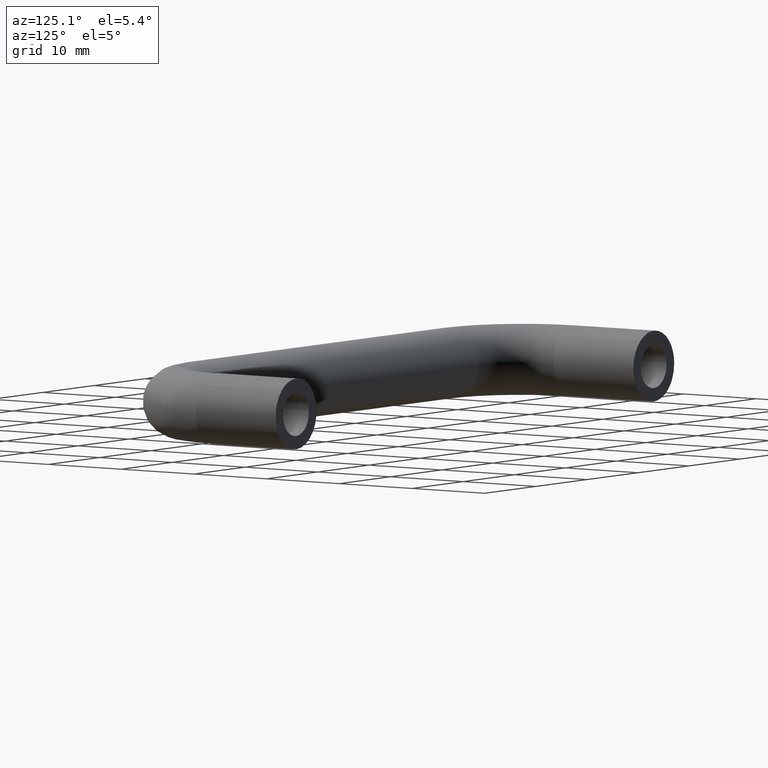
[diagram: clean part render]
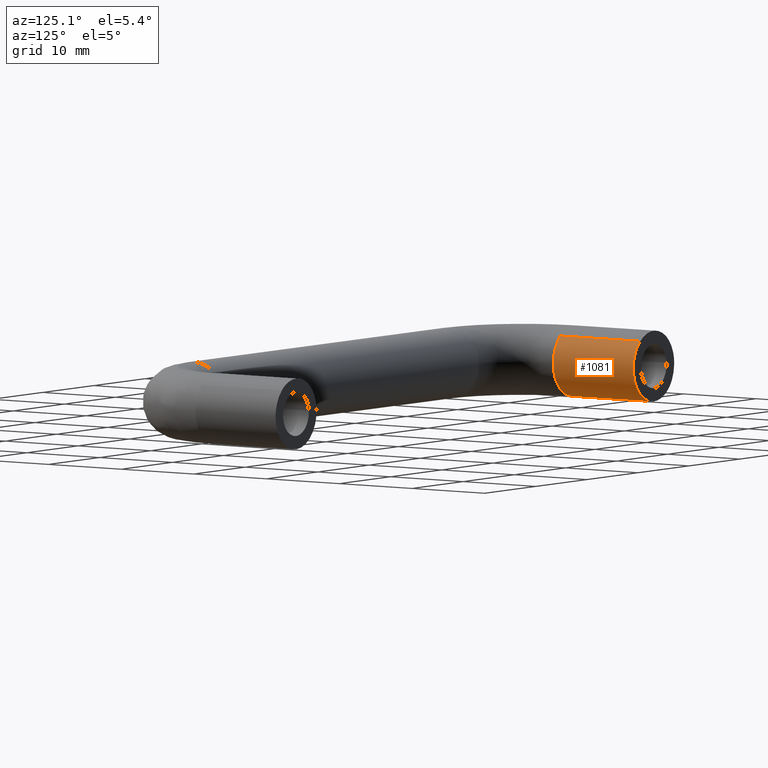
[diagram: same view with one face highlighted and labeled with its STEP entity id]
A machine part, auxiliary view. The second image highlights one B-rep face of the part: STEP entity #1081.
In plain terms, the highlighted face is a freeform B-spline surface patch.
Its self-contained STEP definition (entity closure, byte-faithful):
#884=CARTESIAN_POINT('',(2.635877884242773,-10.999999999999989,3.008678743129542));
#885=VERTEX_POINT('',#884);
#903=CARTESIAN_POINT('',(2.635877889231022,1.419714E-016,3.008678738759379));
#904=VERTEX_POINT('',#903);
#905=CARTESIAN_POINT('',(2.635877889231022,1.419714E-016,3.008678738759379));
#906=CARTESIAN_POINT('',(2.635877884242773,-10.999999999999989,3.008678743129542));
#907=QUASI_UNIFORM_CURVE('',1,(#905,#906),.UNSPECIFIED.,.F.,.U.);
#908=EDGE_CURVE('',#904,#885,#907,.T.);
#927=CARTESIAN_POINT('',(-2.803636887989971,-1.387779E-016,-2.853001962898352));
#928=VERTEX_POINT('',#927);
#942=CARTESIAN_POINT('',(-2.803636885876161,-11.0,-2.853001964975586));
#943=VERTEX_POINT('',#942);
#944=CARTESIAN_POINT('',(-2.803636887989971,-1.387779E-016,-2.853001962898352));
#945=CARTESIAN_POINT('',(-2.803636885876161,-11.0,-2.853001964975586));
#946=QUASI_UNIFORM_CURVE('',1,(#944,#945),.UNSPECIFIED.,.F.,.U.);
#947=EDGE_CURVE('',#928,#943,#946,.T.);
#980=CARTESIAN_POINT('',(-2.803637057199401,0.275000000010581,-2.853001796616727));
#981=CARTESIAN_POINT('',(0.049364739417326,0.275000000010581,-5.656638853816128));
#982=CARTESIAN_POINT('',(2.853001796616727,0.275000000010582,-2.803637057199401));
#983=CARTESIAN_POINT('',(5.656638853816128,0.275000000010582,0.049364739417326));
#984=CARTESIAN_POINT('',(2.803637057199401,0.275000000010582,2.853001796616727));
#985=CARTESIAN_POINT('',(2.721985371512705,0.275000000010582,2.933240684669827));
#986=CARTESIAN_POINT('',(2.635878288639743,0.275000000010582,3.008678388840790));
#987=CARTESIAN_POINT('',(-2.803637057199400,-11.281875000434059,-2.853001796616727));
#988=CARTESIAN_POINT('',(0.049364739417328,-11.281875000434061,-5.656638853816128));
#989=CARTESIAN_POINT('',(2.853001796616729,-11.281875000434059,-2.803637057199401));
#990=CARTESIAN_POINT('',(5.656638853816129,-11.281875000434061,0.049364739417326));
#991=CARTESIAN_POINT('',(2.803637057199402,-11.281875000434059,2.853001796616727));
#992=CARTESIAN_POINT('',(2.721985371512706,-11.281875000434058,2.933240684669827));
#993=CARTESIAN_POINT('',(2.635878288639744,-11.281875000434061,3.008678388840790));
#1001=(BOUNDED_SURFACE()B_SPLINE_SURFACE(2,1,((#980,#987),(#981,#988),(#982,#989),(#983,#990),(#984,#991),(#985,#992),(#986,#993)),.UNSPECIFIED.,.F.,.F.,.U.)B_SPLINE_SURFACE_WITH_KNOTS((3,2,2,3),(2,2),(0.0,6.627416997969519,13.254833995939039,13.519930675857820),(0.0,11.556875000444640),.UNSPECIFIED.)GEOMETRIC_REPRESENTATION_ITEM()RATIONAL_B_SPLINE_SURFACE(((1.0,1.0),(0.707106781186548,0.707106781186548),(1.0,1.0),(0.707106781186548,0.707106781186548),(1.0,1.0),(0.988284271247462,0.988284271247462),(0.977505800795127,0.977505800795127)))REPRESENTATION_ITEM('')SURFACE());
#1002=CARTESIAN_POINT('',(4.000000000000002,-11.0,0.0));
#1003=VERTEX_POINT('',#1002);
#1004=CARTESIAN_POINT('',(4.000000000000002,-11.0,0.0));
#1005=CARTESIAN_POINT('',(4.000000000000002,-11.0,1.813583271575528));
#1006=CARTESIAN_POINT('',(2.635877884242773,-10.999999999999991,3.008678743129541));
#1014=(BOUNDED_CURVE()B_SPLINE_CURVE(2,(#1004,#1005,#1006),.UNSPECIFIED.,.F.,.U.)B_SPLINE_CURVE_WITH_KNOTS((3,3),(0.500000000000000,0.634954760682260),.UNSPECIFIED.)CURVE()GEOMETRIC_REPRESENTATION_ITEM()RATIONAL_B_SPLINE_CURVE((1.0,0.841890662998295,0.854482187890157))REPRESENTATION_ITEM(''));
#1015=EDGE_CURVE('',#1003,#885,#1014,.T.);
#1016=ORIENTED_EDGE('',*,*,#1015,.F.);
#1017=CARTESIAN_POINT('',(0.278933007061322,-11.000000000423221,-3.990262695308634));
#1018=VERTEX_POINT('',#1017);
#1019=CARTESIAN_POINT('',(0.278933007061322,-11.000000000423213,-3.990262695308634));
#1020=CARTESIAN_POINT('',(4.000000000000002,-11.0,-3.730147387642936));
#1021=CARTESIAN_POINT('',(4.000000000000002,-11.0,0.0));
#1029=(BOUNDED_CURVE()B_SPLINE_CURVE(2,(#1019,#1020,#1021),.UNSPECIFIED.,.F.,.U.)B_SPLINE_CURVE_WITH_KNOTS((3,3),(0.262166313530340,0.500000000000000),.UNSPECIFIED.)CURVE()GEOMETRIC_REPRESENTATION_ITEM()RATIONAL_B_SPLINE_CURVE((0.972879876248583,0.721360504110527,1.0))REPRESENTATION_ITEM(''));
#1030=EDGE_CURVE('',#1018,#1003,#1029,.T.);
#1031=ORIENTED_EDGE('',*,*,#1030,.F.);
#1032=CARTESIAN_POINT('',(-2.803636885876160,-10.999999999999996,-2.853001964975585));
#1033=CARTESIAN_POINT('',(-1.636442925307402,-11.0,-4.000000000000001));
#1034=CARTESIAN_POINT('',(1.347067E-015,-11.0,-4.0));
#1035=CARTESIAN_POINT('',(0.139636464261182,-11.000000000000005,-4.000000000000000));
#1036=CARTESIAN_POINT('',(0.278933007061322,-11.000000000423217,-3.990262695308635));
#1044=(BOUNDED_CURVE()B_SPLINE_CURVE(2,(#1032,#1033,#1034,#1035,#1036),.UNSPECIFIED.,.F.,.U.)B_SPLINE_CURVE_WITH_KNOTS((3,2,3),(0.126316775713177,0.250000000000000,0.262166313530340),.UNSPECIFIED.)CURVE()GEOMETRIC_REPRESENTATION_ITEM()RATIONAL_B_SPLINE_CURVE((0.853569641698809,0.855096089301625,1.0,0.985746277076021,0.972879876248583))REPRESENTATION_ITEM(''));
#1045=EDGE_CURVE('',#943,#1018,#1044,.T.);
#1046=ORIENTED_EDGE('',*,*,#1045,.F.);
#1047=ORIENTED_EDGE('',*,*,#947,.F.);
#1048=CARTESIAN_POINT('',(4.0,0.0,0.0));
#1049=VERTEX_POINT('',#1048);
#1050=CARTESIAN_POINT('',(-2.803636887989971,-1.387779E-016,-2.853001962898351));
#1051=CARTESIAN_POINT('',(-1.636442928767058,0.0,-4.0));
#1052=CARTESIAN_POINT('',(0.0,0.0,-4.0));
#1053=CARTESIAN_POINT('',(4.000000000000000,0.0,-4.000000000000000));
#1054=CARTESIAN_POINT('',(4.0,0.0,0.0));
#1062=(BOUNDED_CURVE()B_SPLINE_CURVE(2,(#1050,#1051,#1052,#1053,#1054),.UNSPECIFIED.,.F.,.U.)B_SPLINE_CURVE_WITH_KNOTS((3,2,3),(0.126316775489584,0.250000000000000,0.500000000000000),.UNSPECIFIED.)CURVE()GEOMETRIC_REPRESENTATION_ITEM()RATIONAL_B_SPLINE_CURVE((0.853569641693290,0.855096089039669,1.0,0.707106781186548,1.0))REPRESENTATION_ITEM(''));
#1063=EDGE_CURVE('',#928,#1049,#1062,.T.);
#1064=ORIENTED_EDGE('',*,*,#1063,.T.);
#1065=CARTESIAN_POINT('',(4.0,0.0,0.0));
#1066=CARTESIAN_POINT('',(4.0,0.0,1.813583263580447));
#1067=CARTESIAN_POINT('',(2.635877889231022,1.419714E-016,3.008678738759379));
#1075=(BOUNDED_CURVE()B_SPLINE_CURVE(2,(#1065,#1066,#1067),.UNSPECIFIED.,.F.,.U.)B_SPLINE_CURVE_WITH_KNOTS((3,3),(0.500000000000000,0.634954760181385),.UNSPECIFIED.)CURVE()GEOMETRIC_REPRESENTATION_ITEM()RATIONAL_B_SPLINE_CURVE((1.0,0.841890663585106,0.854482187796692))REPRESENTATION_ITEM(''));
#1076=EDGE_CURVE('',#1049,#904,#1075,.T.);
#1077=ORIENTED_EDGE('',*,*,#1076,.T.);
#1078=ORIENTED_EDGE('',*,*,#908,.T.);
#1079=EDGE_LOOP('',(#1016,#1031,#1046,#1047,#1064,#1077,#1078));
#1080=FACE_OUTER_BOUND('',#1079,.T.);
#1081=ADVANCED_FACE('',(#1080),#1001,.T.);